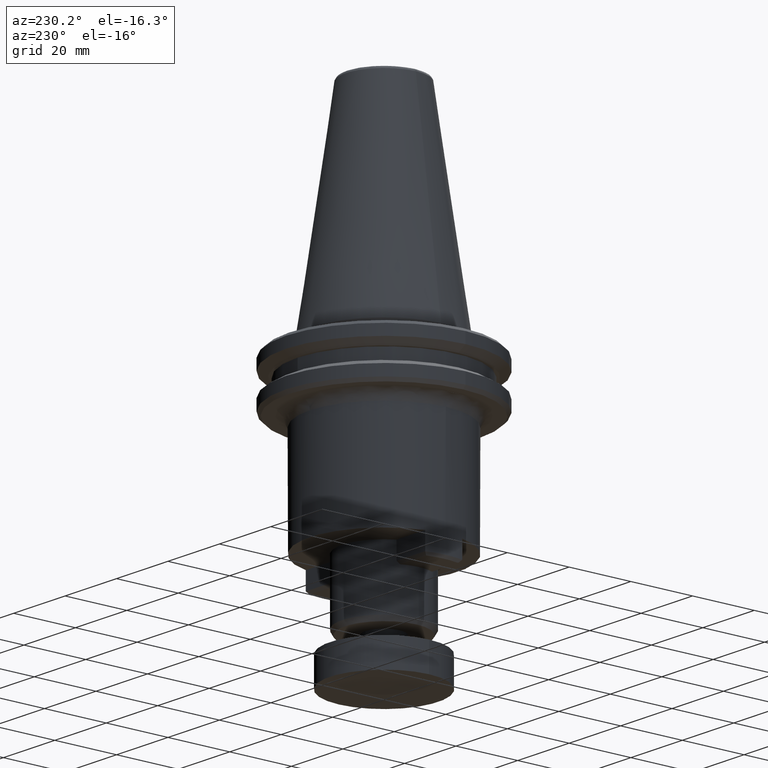
[diagram: clean part render]
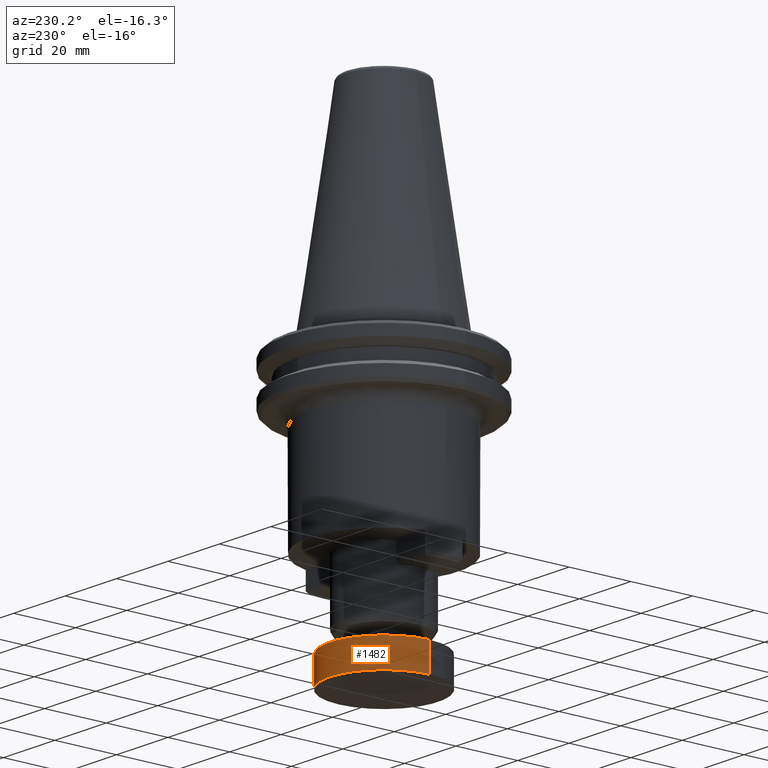
[diagram: same view with one face highlighted and labeled with its STEP entity id]
A machine part, auxiliary view. The second image highlights one B-rep face of the part: STEP entity #1482.
In plain terms, the highlighted cylindrical surface (partial cylindrical patch) has radius 17.5 mm, axis along (0, -0, 1).
Its self-contained STEP definition (entity closure, byte-faithful):
#55 = AXIS2_PLACEMENT_3D ( 'NONE', #540, #748, #1552 ) ;
#60 = LINE ( 'NONE', #1221, #72 ) ;
#72 = VECTOR ( 'NONE', #2378, 1000.000000000000000 ) ;
#213 = CARTESIAN_POINT ( 'NONE',  ( -17.50000000000000000, 2.143131898507868200E-015, -80.99999999999998600 ) ) ;
#236 = DIRECTION ( 'NONE',  ( -0.0000000000000000000, -0.0000000000000000000, 1.000000000000000000 ) ) ;
#502 = CARTESIAN_POINT ( 'NONE',  ( 17.50000000000000000, 0.0000000000000000000, -80.99999999999998600 ) ) ;
#506 = VERTEX_POINT ( 'NONE', #213 ) ;
#540 = CARTESIAN_POINT ( 'NONE',  ( 0.0000000000000000000, 0.0000000000000000000, -92.00000000000000000 ) ) ;
#543 = EDGE_LOOP ( 'NONE', ( #647, #1954, #1404, #798 ) ) ;
#553 = EDGE_CURVE ( 'NONE', #2429, #800, #60, .T. ) ;
#626 = DIRECTION ( 'NONE',  ( 0.0000000000000000000, -0.0000000000000000000, 1.000000000000000000 ) ) ;
#647 = ORIENTED_EDGE ( 'NONE', *, *, #1059, .T. ) ;
#748 = DIRECTION ( 'NONE',  ( 0.0000000000000000000, -0.0000000000000000000, 1.000000000000000000 ) ) ;
#798 = ORIENTED_EDGE ( 'NONE', *, *, #553, .F. ) ;
#800 = VERTEX_POINT ( 'NONE', #502 ) ;
#834 = CARTESIAN_POINT ( 'NONE',  ( -17.50000000000000000, 2.143131898507868200E-015, -92.00000000000000000 ) ) ;
#965 = LINE ( 'NONE', #834, #1226 ) ;
#1008 = EDGE_CURVE ( 'NONE', #1054, #506, #965, .T. ) ;
#1054 = VERTEX_POINT ( 'NONE', #1237 ) ;
#1059 = EDGE_CURVE ( 'NONE', #2429, #1054, #1786, .T. ) ;
#1087 = AXIS2_PLACEMENT_3D ( 'NONE', #1452, #236, #1655 ) ;
#1123 = DIRECTION ( 'NONE',  ( -0.0000000000000000000, -0.0000000000000000000, 1.000000000000000000 ) ) ;
#1171 = AXIS2_PLACEMENT_3D ( 'NONE', #2228, #1123, #2382 ) ;
#1194 = CARTESIAN_POINT ( 'NONE',  ( 17.50000000000000000, 0.0000000000000000000, -90.00000000000000000 ) ) ;
#1221 = CARTESIAN_POINT ( 'NONE',  ( 17.50000000000000000, 0.0000000000000000000, -92.00000000000000000 ) ) ;
#1226 = VECTOR ( 'NONE', #626, 1000.000000000000000 ) ;
#1237 = CARTESIAN_POINT ( 'NONE',  ( -17.50000000000000000, 2.143131898507868200E-015, -90.00000000000000000 ) ) ;
#1322 = EDGE_CURVE ( 'NONE', #800, #506, #1393, .T. ) ;
#1393 = CIRCLE ( 'NONE', #1171, 17.50000000000000000 ) ;
#1404 = ORIENTED_EDGE ( 'NONE', *, *, #1322, .F. ) ;
#1452 = CARTESIAN_POINT ( 'NONE',  ( 0.0000000000000000000, 0.0000000000000000000, -90.00000000000000000 ) ) ;
#1482 = ADVANCED_FACE ( 'NONE', ( #1524 ), #1535, .T. ) ;
#1524 = FACE_OUTER_BOUND ( 'NONE', #543, .T. ) ;
#1535 = CYLINDRICAL_SURFACE ( 'NONE', #55, 17.50000000000000000 ) ;
#1552 = DIRECTION ( 'NONE',  ( 1.000000000000000000, 0.0000000000000000000, 0.0000000000000000000 ) ) ;
#1655 = DIRECTION ( 'NONE',  ( 1.000000000000000000, 0.0000000000000000000, 0.0000000000000000000 ) ) ;
#1786 = CIRCLE ( 'NONE', #1087, 17.50000000000000000 ) ;
#1954 = ORIENTED_EDGE ( 'NONE', *, *, #1008, .T. ) ;
#2228 = CARTESIAN_POINT ( 'NONE',  ( 0.0000000000000000000, 0.0000000000000000000, -80.99999999999998600 ) ) ;
#2378 = DIRECTION ( 'NONE',  ( 0.0000000000000000000, -0.0000000000000000000, 1.000000000000000000 ) ) ;
#2382 = DIRECTION ( 'NONE',  ( 1.000000000000000000, 0.0000000000000000000, 0.0000000000000000000 ) ) ;
#2429 = VERTEX_POINT ( 'NONE', #1194 ) ;